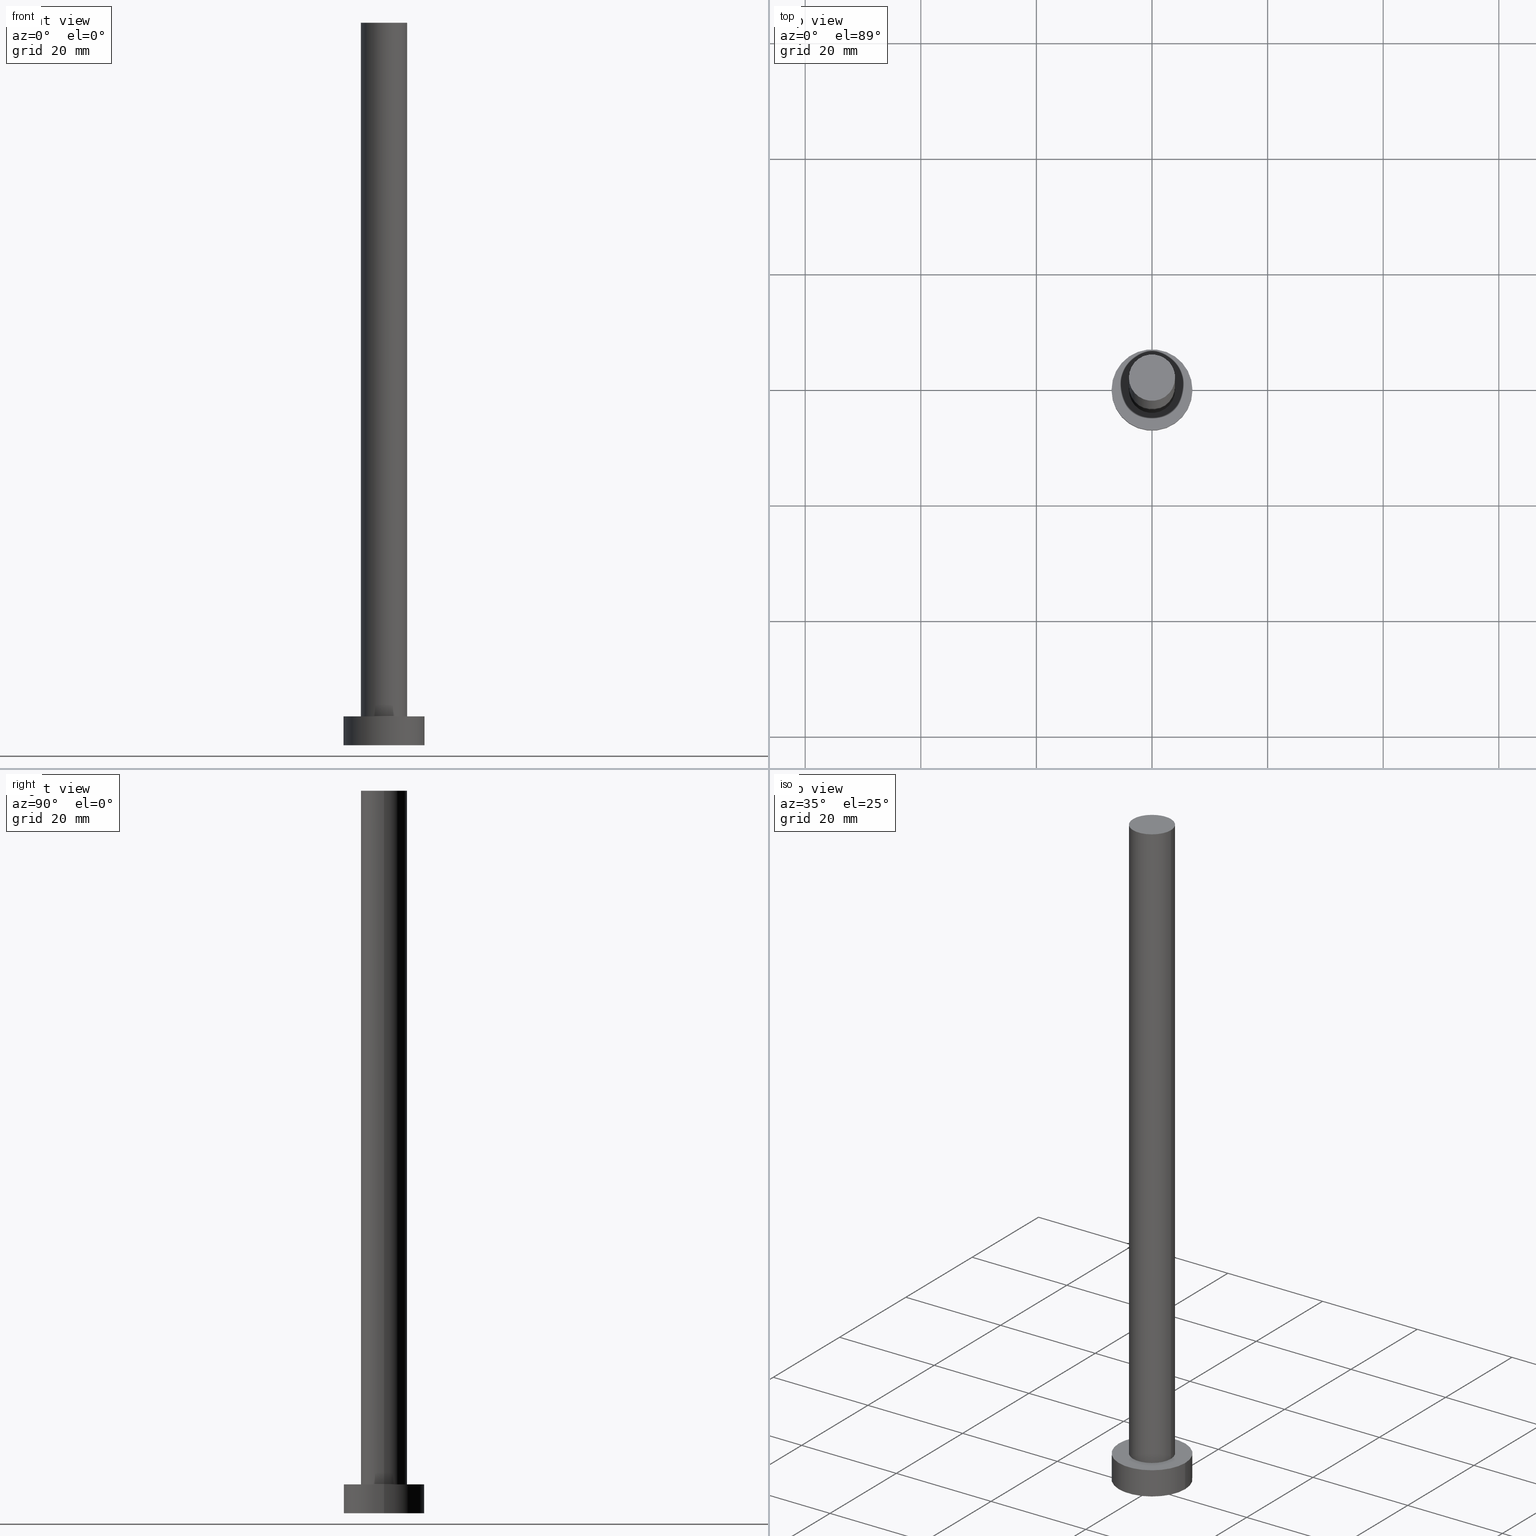
[diagram: canonical four-view strip — front | top / right | iso, engineering-drawing reading convention]
A machine part, canonical four-view strip (front | top / right | iso — engineering-drawing reading convention). The complete STEP part file that produces these views, byte-faithful:
ISO-10303-21;
HEADER;
FILE_DESCRIPTION (( 'STEP AP203' ),
    '1' );
FILE_NAME ('b268.STEP',
    '2023-02-13T14:23:23',
    ( '' ),
    ( '' ),
    'SwSTEP 2.0',
    'SolidWorks 2019',
    '' );
FILE_SCHEMA (( 'CONFIG_CONTROL_DESIGN' ));
ENDSEC;

DATA;
#1 = LINE ( 'NONE', #110, #211 ) ;
#2 = VECTOR ( 'NONE', #40, 1000.000000000000000 ) ;
#3 = CARTESIAN_POINT ( 'NONE',  ( 0.000000000000000000, 0.000000000000000000, 125.0000000000000000 ) ) ;
#4 = CARTESIAN_POINT ( 'NONE',  ( 0.000000000000000000, 0.000000000000000000, 125.0000000000000000 ) ) ;
#5 = AXIS2_PLACEMENT_3D ( 'NONE', #43, #203, #212 ) ;
#6 = PERSON_AND_ORGANIZATION_ROLE ( 'design_owner' ) ;
#7 = CARTESIAN_POINT ( 'NONE',  ( 0.000000000000000000, 0.000000000000000000, 0.000000000000000000 ) ) ;
#8 = ORIENTED_EDGE ( 'NONE', *, *, #125, .T. ) ;
#9 = ORIENTED_EDGE ( 'NONE', *, *, #154, .T. ) ;
#10 = ORGANIZATION ( 'NEUR�EN�', 'NEUR�EN�', '' ) ;
#11 = EDGE_LOOP ( 'NONE', ( #186, #206 ) ) ;
#12 = CC_DESIGN_PERSON_AND_ORGANIZATION_ASSIGNMENT ( #227, #122, ( #136 ) ) ;
#13 = CALENDAR_DATE ( 2023, 13, 2 ) ;
#14 = APPLICATION_CONTEXT ( 'configuration controlled 3d designs of mechanical parts and assemblies' ) ;
#15 = PERSON_AND_ORGANIZATION ( #106, #10 ) ;
#16 = FACE_BOUND ( 'NONE', #252, .T. ) ;
#17 = APPROVAL ( #143, 'NEUR�EN�' ) ;
#18 = COORDINATED_UNIVERSAL_TIME_OFFSET ( 1, 0, .AHEAD. ) ;
#19 = CARTESIAN_POINT ( 'NONE',  ( 0.000000000000000000, 0.000000000000000000, 0.000000000000000000 ) ) ;
#20 = APPROVAL_PERSON_ORGANIZATION ( #119, #17, #30 ) ;
#21 = LINE ( 'NONE', #250, #86 ) ;
#22 = CARTESIAN_POINT ( 'NONE',  ( 7.000000000000000000, 8.572527594031473190E-16, 5.000000000000000000 ) ) ;
#23 = CARTESIAN_POINT ( 'NONE',  ( 0.000000000000000000, 0.000000000000000000, 5.000000000000000000 ) ) ;
#24 = DIRECTION ( 'NONE',  ( -0.000000000000000000, -0.000000000000000000, -1.000000000000000000 ) ) ;
#25 = CARTESIAN_POINT ( 'NONE',  ( -7.000000000000000000, 0.000000000000000000, 5.000000000000000000 ) ) ;
#26 = APPROVAL ( #162, 'NEUR�EN�' ) ;
#27 = EDGE_LOOP ( 'NONE', ( #31, #44 ) ) ;
#28 = APPROVAL_ROLE ( '' ) ;
#29 = EDGE_LOOP ( 'NONE', ( #152, #47, #169, #228 ) ) ;
#30 = APPROVAL_ROLE ( '' ) ;
#31 = ORIENTED_EDGE ( 'NONE', *, *, #226, .T. ) ;
#32 = COORDINATED_UNIVERSAL_TIME_OFFSET ( 1, 0, .AHEAD. ) ;
#33 = CYLINDRICAL_SURFACE ( 'NONE', #70, 4.000000000000000000 ) ;
#34 = AXIS2_PLACEMENT_3D ( 'NONE', #4, #179, #148 ) ;
#35 = APPROVAL_DATE_TIME ( #208, #17 ) ;
#36 = CARTESIAN_POINT ( 'NONE',  ( 7.000000000000000000, 8.572527594031473190E-16, 5.000000000000000000 ) ) ;
#37 = CC_DESIGN_DATE_AND_TIME_ASSIGNMENT ( #253, #75, ( #213 ) ) ;
#38 = CIRCLE ( 'NONE', #182, 7.000000000000000000 ) ;
#39 = CIRCLE ( 'NONE', #34, 4.000000000000000000 ) ;
#40 = DIRECTION ( 'NONE',  ( -0.000000000000000000, -0.000000000000000000, -1.000000000000000000 ) ) ;
#41 = DIRECTION ( 'NONE',  ( -1.000000000000000000, 0.000000000000000000, 0.000000000000000000 ) ) ;
#42 = CC_DESIGN_PERSON_AND_ORGANIZATION_ASSIGNMENT ( #246, #175, ( #213 ) ) ;
#43 = CARTESIAN_POINT ( 'NONE',  ( 0.000000000000000000, 0.000000000000000000, 5.000000000000000000 ) ) ;
#44 = ORIENTED_EDGE ( 'NONE', *, *, #77, .T. ) ;
#45 = SECURITY_CLASSIFICATION ( '', '', #172 ) ;
#46 = DESIGN_CONTEXT ( 'detailed design', #74, 'design' ) ;
#47 = ORIENTED_EDGE ( 'NONE', *, *, #154, .F. ) ;
#48 = EDGE_CURVE ( 'NONE', #121, #171, #91, .T. ) ;
#49 = ORIENTED_EDGE ( 'NONE', *, *, #133, .T. ) ;
#50 = APPROVAL_PERSON_ORGANIZATION ( #100, #26, #99 ) ;
#51 = PERSON_AND_ORGANIZATION_ROLE ( 'design_supplier' ) ;
#52 = VERTEX_POINT ( 'NONE', #164 ) ;
#53 = APPROVAL_DATE_TIME ( #190, #26 ) ;
#54 = DIRECTION ( 'NONE',  ( 0.000000000000000000, 0.000000000000000000, 1.000000000000000000 ) ) ;
#55 = CARTESIAN_POINT ( 'NONE',  ( 0.000000000000000000, 0.000000000000000000, 0.000000000000000000 ) ) ;
#56 = DIRECTION ( 'NONE',  ( -0.000000000000000000, -0.000000000000000000, -1.000000000000000000 ) ) ;
#57 = PRODUCT_DEFINITION_SHAPE ( 'NONE', 'NONE',  #213 ) ;
#58 = DIRECTION ( 'NONE',  ( 1.000000000000000000, 0.000000000000000000, 0.000000000000000000 ) ) ;
#59 = AXIS2_PLACEMENT_3D ( 'NONE', #19, #104, #101 ) ;
#60 = DIRECTION ( 'NONE',  ( -1.000000000000000000, 0.000000000000000000, 0.000000000000000000 ) ) ;
#61 = CYLINDRICAL_SURFACE ( 'NONE', #245, 4.000000000000000000 ) ;
#62 = APPROVAL ( #204, 'NEUR�EN�' ) ;
#63 = PRODUCT ( 'b268', 'b268', '', ( #132 ) ) ;
#64 = FACE_OUTER_BOUND ( 'NONE', #221, .T. ) ;
#65 = PRODUCT_RELATED_PRODUCT_CATEGORY ( 'detail', '', ( #63 ) ) ;
#66 = LINE ( 'NONE', #25, #2 ) ;
#67 = ORIENTED_EDGE ( 'NONE', *, *, #115, .T. ) ;
#68 = PERSON_AND_ORGANIZATION ( #106, #10 ) ;
#69 = ORIENTED_EDGE ( 'NONE', *, *, #200, .T. ) ;
#70 = AXIS2_PLACEMENT_3D ( 'NONE', #98, #174, #141 ) ;
#71 = DIRECTION ( 'NONE',  ( 0.000000000000000000, 0.000000000000000000, 1.000000000000000000 ) ) ;
#72 = EDGE_LOOP ( 'NONE', ( #134, #137, #69, #114 ) ) ;
#73 = FACE_OUTER_BOUND ( 'NONE', #11, .T. ) ;
#74 = APPLICATION_CONTEXT ( 'configuration controlled 3d designs of mechanical parts and assemblies' ) ;
#75 = DATE_TIME_ROLE ( 'creation_date' ) ;
#76 = DIRECTION ( 'NONE',  ( 0.000000000000000000, 0.000000000000000000, 1.000000000000000000 ) ) ;
#77 = EDGE_CURVE ( 'NONE', #155, #52, #81, .T. ) ;
#78 = LOCAL_TIME ( 15, 23, 23.00000000000000000, #176 ) ;
#79 = FACE_OUTER_BOUND ( 'NONE', #184, .T. ) ;
#80 = PLANE ( 'NONE',  #103 ) ;
#81 = CIRCLE ( 'NONE', #230, 4.000000000000000000 ) ;
#82 = ADVANCED_FACE ( 'NONE', ( #209 ), #160, .T. ) ;
#83 = DIRECTION ( 'NONE',  ( -0.000000000000000000, -0.000000000000000000, -1.000000000000000000 ) ) ;
#84 =( LENGTH_UNIT ( ) NAMED_UNIT ( * ) SI_UNIT ( .MILLI., .METRE. ) );
#85 = CARTESIAN_POINT ( 'NONE',  ( 4.000000000000000000, 4.898587196589412829E-16, 125.0000000000000000 ) ) ;
#86 = VECTOR ( 'NONE', #56, 1000.000000000000000 ) ;
#87 = CYLINDRICAL_SURFACE ( 'NONE', #243, 7.000000000000000000 ) ;
#88 = VERTEX_POINT ( 'NONE', #123 ) ;
#89 = APPLICATION_PROTOCOL_DEFINITION ( 'international standard', 'config_control_design', 1994, #74 ) ;
#90 = VERTEX_POINT ( 'NONE', #36 ) ;
#91 = CIRCLE ( 'NONE', #216, 4.000000000000000000 ) ;
#92 = APPROVAL_DATE_TIME ( #185, #62 ) ;
#93 = EDGE_CURVE ( 'NONE', #155, #171, #21, .T. ) ;
#94 = ORIENTED_EDGE ( 'NONE', *, *, #48, .T. ) ;
#95 = LOCAL_TIME ( 15, 23, 23.00000000000000000, #32 ) ;
#96 = APPLICATION_PROTOCOL_DEFINITION ( 'international standard', 'config_control_design', 1994, #14 ) ;
#97 = CC_DESIGN_APPROVAL ( #17, ( #136 ) ) ;
#98 = CARTESIAN_POINT ( 'NONE',  ( 0.000000000000000000, 0.000000000000000000, 125.0000000000000000 ) ) ;
#99 = APPROVAL_ROLE ( '' ) ;
#100 = PERSON_AND_ORGANIZATION ( #106, #10 ) ;
#101 = DIRECTION ( 'NONE',  ( 1.000000000000000000, 0.000000000000000000, 0.000000000000000000 ) ) ;
#102 = EDGE_CURVE ( 'NONE', #205, #88, #215, .T. ) ;
#103 = AXIS2_PLACEMENT_3D ( 'NONE', #238, #237, #147 ) ;
#104 = DIRECTION ( 'NONE',  ( 0.000000000000000000, 0.000000000000000000, 1.000000000000000000 ) ) ;
#105 = DIRECTION ( 'NONE',  ( 0.000000000000000000, 0.000000000000000000, 1.000000000000000000 ) ) ;
#106 = PERSON ( 'NEUR�EN�', 'NEUR�EN�', 'NEUR�EN�', ('NEUR�EN�'), ('NEUR�EN�'), ('NEUR�EN�') ) ;
#107 = ADVANCED_FACE ( 'NONE', ( #16, #79 ), #178, .T. ) ;
#108 = VECTOR ( 'NONE', #149, 1000.000000000000000 ) ;
#109 = AXIS2_PLACEMENT_3D ( 'NONE', #218, #236, #180 ) ;
#110 = CARTESIAN_POINT ( 'NONE',  ( -4.000000000000000000, 0.000000000000000000, 125.0000000000000000 ) ) ;
#111 = ADVANCED_FACE ( 'NONE', ( #73 ), #158, .F. ) ;
#112 = CARTESIAN_POINT ( 'NONE',  ( 0.000000000000000000, 0.000000000000000000, 5.000000000000000000 ) ) ;
#113 = PERSON_AND_ORGANIZATION ( #106, #10 ) ;
#114 = ORIENTED_EDGE ( 'NONE', *, *, #125, .F. ) ;
#115 = EDGE_CURVE ( 'NONE', #88, #205, #38, .T. ) ;
#116 = COORDINATED_UNIVERSAL_TIME_OFFSET ( 1, 0, .AHEAD. ) ;
#117 = AXIS2_PLACEMENT_3D ( 'NONE', #55, #163, #192 ) ;
#118 = ADVANCED_FACE ( 'NONE', ( #207 ), #33, .T. ) ;
#119 = PERSON_AND_ORGANIZATION ( #106, #10 ) ;
#120 = CALENDAR_DATE ( 2023, 13, 2 ) ;
#121 = VERTEX_POINT ( 'NONE', #150 ) ;
#122 = PERSON_AND_ORGANIZATION_ROLE ( 'creator' ) ;
#123 = CARTESIAN_POINT ( 'NONE',  ( 7.000000000000000000, 8.572527594031473190E-16, 0.000000000000000000 ) ) ;
#124 = AXIS2_PLACEMENT_3D ( 'NONE', #23, #105, #214 ) ;
#125 = EDGE_CURVE ( 'NONE', #52, #121, #1, .T. ) ;
#126 = FACE_OUTER_BOUND ( 'NONE', #27, .T. ) ;
#127 = MANIFOLD_SOLID_BREP ( 'P�idat vysunut�m3', #128 ) ;
#128 = CLOSED_SHELL ( 'NONE', ( #118, #130, #82, #107, #111, #183, #145 ) ) ;
#129 = CC_DESIGN_SECURITY_CLASSIFICATION ( #45, ( #136 ) ) ;
#130 = ADVANCED_FACE ( 'NONE', ( #64 ), #87, .T. ) ;
#131 = CARTESIAN_POINT ( 'NONE',  ( 4.000000000000000000, 4.898587196589412829E-16, 5.000000000000000000 ) ) ;
#132 = MECHANICAL_CONTEXT ( 'NONE', #14, 'mechanical' ) ;
#133 = EDGE_CURVE ( 'NONE', #90, #88, #166, .T. ) ;
#134 = ORIENTED_EDGE ( 'NONE', *, *, #77, .F. ) ;
#135 =( NAMED_UNIT ( * ) PLANE_ANGLE_UNIT ( ) SI_UNIT ( $, .RADIAN. ) );
#136 = PRODUCT_DEFINITION_FORMATION_WITH_SPECIFIED_SOURCE ( 'LIBOVOLN�', '', #63, .NOT_KNOWN. ) ;
#137 = ORIENTED_EDGE ( 'NONE', *, *, #93, .T. ) ;
#138 = ORIENTED_EDGE ( 'NONE', *, *, #142, .F. ) ;
#139 = DIRECTION ( 'NONE',  ( 1.000000000000000000, 0.000000000000000000, 0.000000000000000000 ) ) ;
#140 = ADVANCED_BREP_SHAPE_REPRESENTATION ( 'b268', ( #127, #146 ), #249 ) ;
#141 = DIRECTION ( 'NONE',  ( -1.000000000000000000, 0.000000000000000000, 0.000000000000000000 ) ) ;
#142 = EDGE_CURVE ( 'NONE', #90, #248, #161, .T. ) ;
#143 = APPROVAL_STATUS ( 'not_yet_approved' ) ;
#144 = CARTESIAN_POINT ( 'NONE',  ( 0.000000000000000000, 0.000000000000000000, 125.0000000000000000 ) ) ;
#145 = ADVANCED_FACE ( 'NONE', ( #126 ), #80, .T. ) ;
#146 = AXIS2_PLACEMENT_3D ( 'NONE', #7, #71, #220 ) ;
#147 = DIRECTION ( 'NONE',  ( 1.000000000000000000, 0.000000000000000000, -0.000000000000000000 ) ) ;
#148 = DIRECTION ( 'NONE',  ( 1.000000000000000000, 0.000000000000000000, 0.000000000000000000 ) ) ;
#149 = DIRECTION ( 'NONE',  ( -0.000000000000000000, -0.000000000000000000, -1.000000000000000000 ) ) ;
#150 = CARTESIAN_POINT ( 'NONE',  ( -4.000000000000000000, 0.000000000000000000, 5.000000000000000000 ) ) ;
#151 = CIRCLE ( 'NONE', #109, 7.000000000000000000 ) ;
#152 = ORIENTED_EDGE ( 'NONE', *, *, #133, .F. ) ;
#153 = UNCERTAINTY_MEASURE_WITH_UNIT (LENGTH_MEASURE( 1.000000000000000082E-05 ), #84, 'distance_accuracy_value', 'NONE');
#154 = EDGE_CURVE ( 'NONE', #248, #90, #151, .T. ) ;
#155 = VERTEX_POINT ( 'NONE', #85 ) ;
#156 = ORIENTED_EDGE ( 'NONE', *, *, #189, .F. ) ;
#157 = PERSON_AND_ORGANIZATION_ROLE ( 'classification_officer' ) ;
#158 = PLANE ( 'NONE',  #117 ) ;
#159 = CALENDAR_DATE ( 2023, 13, 2 ) ;
#160 = CYLINDRICAL_SURFACE ( 'NONE', #167, 7.000000000000000000 ) ;
#161 = CIRCLE ( 'NONE', #124, 7.000000000000000000 ) ;
#162 = APPROVAL_STATUS ( 'not_yet_approved' ) ;
#163 = DIRECTION ( 'NONE',  ( 0.000000000000000000, 0.000000000000000000, 1.000000000000000000 ) ) ;
#164 = CARTESIAN_POINT ( 'NONE',  ( -4.000000000000000000, 0.000000000000000000, 125.0000000000000000 ) ) ;
#165 = LOCAL_TIME ( 15, 23, 23.00000000000000000, #187 ) ;
#166 = LINE ( 'NONE', #22, #108 ) ;
#167 = AXIS2_PLACEMENT_3D ( 'NONE', #233, #231, #173 ) ;
#168 = APPROVAL_PERSON_ORGANIZATION ( #68, #62, #28 ) ;
#169 = ORIENTED_EDGE ( 'NONE', *, *, #189, .T. ) ;
#170 = CALENDAR_DATE ( 2023, 13, 2 ) ;
#171 = VERTEX_POINT ( 'NONE', #131 ) ;
#172 = SECURITY_CLASSIFICATION_LEVEL ( 'unclassified' ) ;
#173 = DIRECTION ( 'NONE',  ( -1.000000000000000000, 0.000000000000000000, 0.000000000000000000 ) ) ;
#174 = DIRECTION ( 'NONE',  ( -0.000000000000000000, -0.000000000000000000, -1.000000000000000000 ) ) ;
#175 = PERSON_AND_ORGANIZATION_ROLE ( 'creator' ) ;
#176 = COORDINATED_UNIVERSAL_TIME_OFFSET ( 1, 0, .AHEAD. ) ;
#177 = DIRECTION ( 'NONE',  ( 1.000000000000000000, 0.000000000000000000, -0.000000000000000000 ) ) ;
#178 = PLANE ( 'NONE',  #255 ) ;
#179 = DIRECTION ( 'NONE',  ( 0.000000000000000000, 0.000000000000000000, 1.000000000000000000 ) ) ;
#180 = DIRECTION ( 'NONE',  ( 1.000000000000000000, 0.000000000000000000, 0.000000000000000000 ) ) ;
#181 = CARTESIAN_POINT ( 'NONE',  ( -7.000000000000000000, 0.000000000000000000, 0.000000000000000000 ) ) ;
#182 = AXIS2_PLACEMENT_3D ( 'NONE', #229, #54, #139 ) ;
#183 = ADVANCED_FACE ( 'NONE', ( #240 ), #61, .T. ) ;
#184 = EDGE_LOOP ( 'NONE', ( #9, #224 ) ) ;
#185 = DATE_AND_TIME ( #170, #241 ) ;
#186 = ORIENTED_EDGE ( 'NONE', *, *, #102, .F. ) ;
#187 = COORDINATED_UNIVERSAL_TIME_OFFSET ( 1, 0, .AHEAD. ) ;
#188 = DIRECTION ( 'NONE',  ( 1.000000000000000000, 0.000000000000000000, 0.000000000000000000 ) ) ;
#189 = EDGE_CURVE ( 'NONE', #248, #205, #66, .T. ) ;
#190 = DATE_AND_TIME ( #159, #78 ) ;
#191 = LOCAL_TIME ( 15, 23, 23.00000000000000000, #18 ) ;
#192 = DIRECTION ( 'NONE',  ( 1.000000000000000000, 0.000000000000000000, -0.000000000000000000 ) ) ;
#193 = CALENDAR_DATE ( 2023, 13, 2 ) ;
#194 = DATE_AND_TIME ( #120, #191 ) ;
#195 = CC_DESIGN_PERSON_AND_ORGANIZATION_ASSIGNMENT ( #232, #157, ( #45 ) ) ;
#196 = CARTESIAN_POINT ( 'NONE',  ( 0.000000000000000000, 0.000000000000000000, 5.000000000000000000 ) ) ;
#197 = DATE_TIME_ROLE ( 'classification_date' ) ;
#198 = ORIENTED_EDGE ( 'NONE', *, *, #93, .F. ) ;
#199 = CC_DESIGN_APPROVAL ( #26, ( #45 ) ) ;
#200 = EDGE_CURVE ( 'NONE', #171, #121, #225, .T. ) ;
#201 = CARTESIAN_POINT ( 'NONE',  ( -7.000000000000000000, 0.000000000000000000, 5.000000000000000000 ) ) ;
#202 = CC_DESIGN_APPROVAL ( #62, ( #213 ) ) ;
#203 = DIRECTION ( 'NONE',  ( 0.000000000000000000, 0.000000000000000000, 1.000000000000000000 ) ) ;
#204 = APPROVAL_STATUS ( 'not_yet_approved' ) ;
#205 = VERTEX_POINT ( 'NONE', #181 ) ;
#206 = ORIENTED_EDGE ( 'NONE', *, *, #115, .F. ) ;
#207 = FACE_OUTER_BOUND ( 'NONE', #72, .T. ) ;
#208 = DATE_AND_TIME ( #13, #165 ) ;
#209 = FACE_OUTER_BOUND ( 'NONE', #29, .T. ) ;
#210 = DIRECTION ( 'NONE',  ( 0.000000000000000000, 0.000000000000000000, 1.000000000000000000 ) ) ;
#211 = VECTOR ( 'NONE', #24, 1000.000000000000000 ) ;
#212 = DIRECTION ( 'NONE',  ( 1.000000000000000000, 0.000000000000000000, 0.000000000000000000 ) ) ;
#213 = PRODUCT_DEFINITION ( 'NEZN�M�', '', #136, #46 ) ;
#214 = DIRECTION ( 'NONE',  ( 1.000000000000000000, 0.000000000000000000, 0.000000000000000000 ) ) ;
#215 = CIRCLE ( 'NONE', #59, 7.000000000000000000 ) ;
#216 = AXIS2_PLACEMENT_3D ( 'NONE', #196, #76, #58 ) ;
#217 = DIRECTION ( 'NONE',  ( -0.000000000000000000, -0.000000000000000000, -1.000000000000000000 ) ) ;
#218 = CARTESIAN_POINT ( 'NONE',  ( 0.000000000000000000, 0.000000000000000000, 5.000000000000000000 ) ) ;
#219 = EDGE_LOOP ( 'NONE', ( #198, #244, #8, #94 ) ) ;
#220 = DIRECTION ( 'NONE',  ( 1.000000000000000000, 0.000000000000000000, 0.000000000000000000 ) ) ;
#221 = EDGE_LOOP ( 'NONE', ( #138, #49, #67, #156 ) ) ;
#222 = CC_DESIGN_PERSON_AND_ORGANIZATION_ASSIGNMENT ( #15, #51, ( #136 ) ) ;
#223 =( NAMED_UNIT ( * ) SI_UNIT ( $, .STERADIAN. ) SOLID_ANGLE_UNIT ( ) );
#224 = ORIENTED_EDGE ( 'NONE', *, *, #142, .T. ) ;
#225 = CIRCLE ( 'NONE', #5, 4.000000000000000000 ) ;
#226 = EDGE_CURVE ( 'NONE', #52, #155, #39, .T. ) ;
#227 = PERSON_AND_ORGANIZATION ( #106, #10 ) ;
#228 = ORIENTED_EDGE ( 'NONE', *, *, #102, .T. ) ;
#229 = CARTESIAN_POINT ( 'NONE',  ( 0.000000000000000000, 0.000000000000000000, 0.000000000000000000 ) ) ;
#230 = AXIS2_PLACEMENT_3D ( 'NONE', #144, #210, #188 ) ;
#231 = DIRECTION ( 'NONE',  ( -0.000000000000000000, -0.000000000000000000, -1.000000000000000000 ) ) ;
#232 = PERSON_AND_ORGANIZATION ( #106, #10 ) ;
#233 = CARTESIAN_POINT ( 'NONE',  ( 0.000000000000000000, 0.000000000000000000, 5.000000000000000000 ) ) ;
#234 = DIRECTION ( 'NONE',  ( 0.000000000000000000, 0.000000000000000000, 1.000000000000000000 ) ) ;
#235 = CC_DESIGN_DATE_AND_TIME_ASSIGNMENT ( #194, #197, ( #45 ) ) ;
#236 = DIRECTION ( 'NONE',  ( 0.000000000000000000, 0.000000000000000000, 1.000000000000000000 ) ) ;
#237 = DIRECTION ( 'NONE',  ( 0.000000000000000000, 0.000000000000000000, 1.000000000000000000 ) ) ;
#238 = CARTESIAN_POINT ( 'NONE',  ( 0.000000000000000000, 0.000000000000000000, 125.0000000000000000 ) ) ;
#239 = CC_DESIGN_PERSON_AND_ORGANIZATION_ASSIGNMENT ( #113, #6, ( #63 ) ) ;
#240 = FACE_OUTER_BOUND ( 'NONE', #219, .T. ) ;
#241 = LOCAL_TIME ( 15, 23, 23.00000000000000000, #116 ) ;
#242 = ORIENTED_EDGE ( 'NONE', *, *, #200, .F. ) ;
#243 = AXIS2_PLACEMENT_3D ( 'NONE', #112, #83, #41 ) ;
#244 = ORIENTED_EDGE ( 'NONE', *, *, #226, .F. ) ;
#245 = AXIS2_PLACEMENT_3D ( 'NONE', #3, #217, #60 ) ;
#246 = PERSON_AND_ORGANIZATION ( #106, #10 ) ;
#247 = ORIENTED_EDGE ( 'NONE', *, *, #48, .F. ) ;
#248 = VERTEX_POINT ( 'NONE', #201 ) ;
#249 =( GEOMETRIC_REPRESENTATION_CONTEXT ( 3 ) GLOBAL_UNCERTAINTY_ASSIGNED_CONTEXT ( ( #153 ) ) GLOBAL_UNIT_ASSIGNED_CONTEXT ( ( #84, #135, #223 ) ) REPRESENTATION_CONTEXT ( 'NONE', 'WORKASPACE' ) );
#250 = CARTESIAN_POINT ( 'NONE',  ( 4.000000000000000000, 4.898587196589412829E-16, 125.0000000000000000 ) ) ;
#251 = SHAPE_DEFINITION_REPRESENTATION ( #57, #140 ) ;
#252 = EDGE_LOOP ( 'NONE', ( #247, #242 ) ) ;
#253 = DATE_AND_TIME ( #193, #95 ) ;
#254 = CARTESIAN_POINT ( 'NONE',  ( 0.000000000000000000, 0.000000000000000000, 5.000000000000000000 ) ) ;
#255 = AXIS2_PLACEMENT_3D ( 'NONE', #254, #234, #177 ) ;
ENDSEC;
END-ISO-10303-21;
